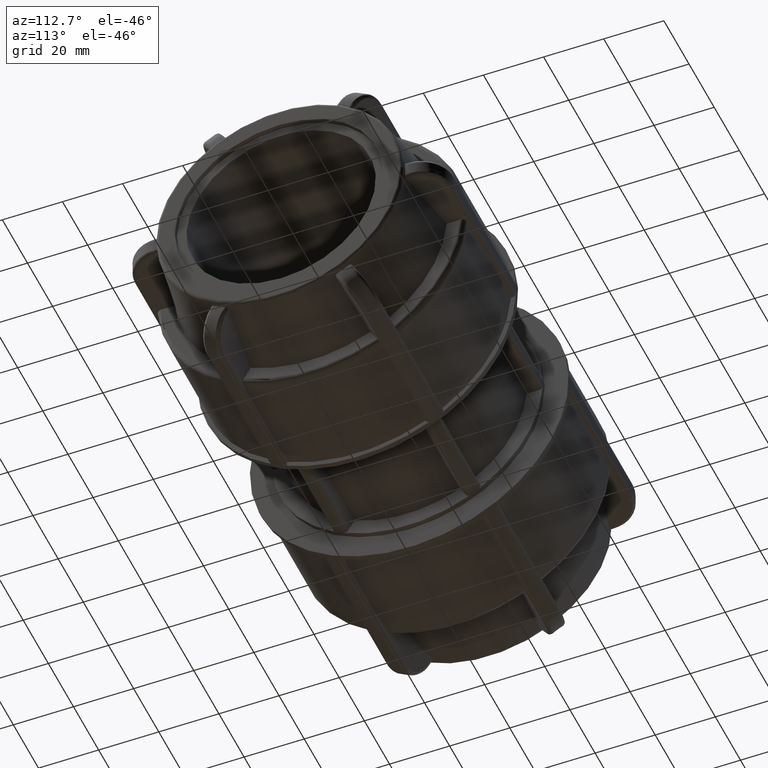
[diagram: clean part render]
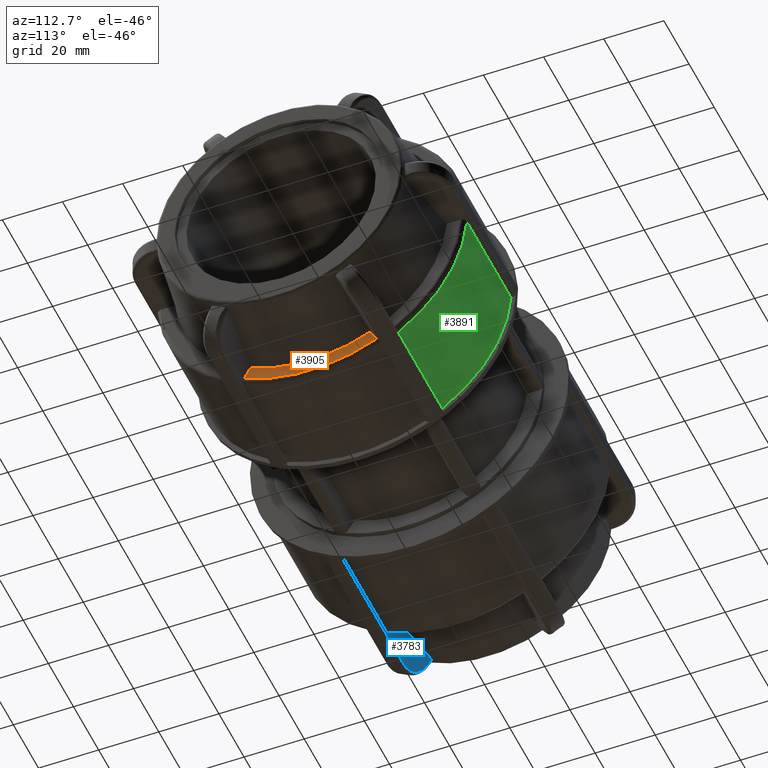
[diagram: same view with three faces highlighted in distinct colors, each labeled with its STEP entity id]
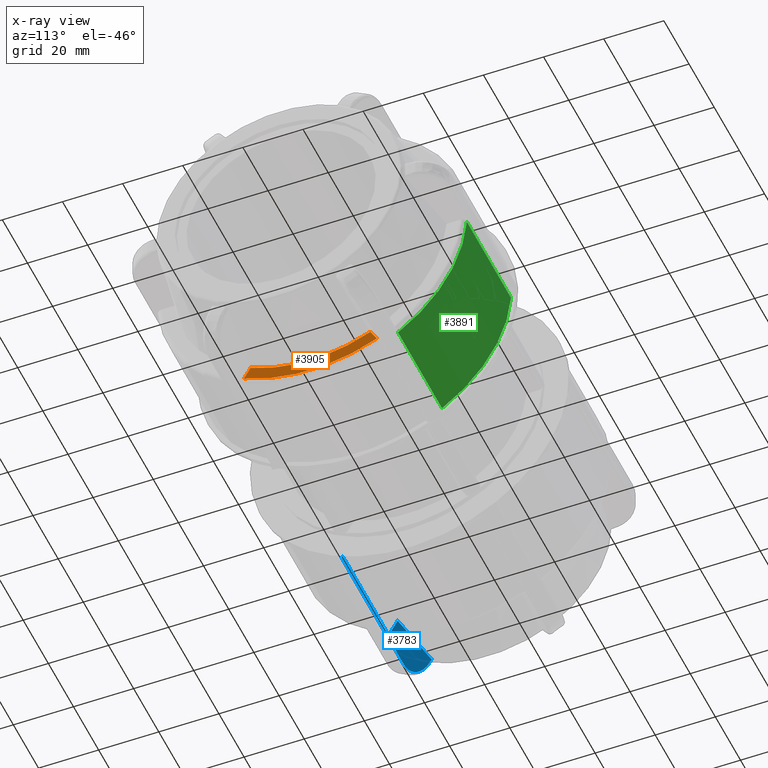
[diagram: x-ray of the same camera — body ghosted, the three highlighted faces saturated]
A machine part, auxiliary view with three faces highlighted in distinct colors.
The next image is the same camera in x-ray (body ghosted, the three faces saturated) — at least one of them is partly hidden behind the body in this view.
Their STEP definitions:

[orange] entity #3905 — the highlighted planar face has unit normal (1, 0, 0).
#299=PLANE('',#4342);
#519=FACE_OUTER_BOUND('',#772,.T.);
#772=EDGE_LOOP('',(#3537,#3538,#3539,#3540));
#964=LINE('',#7294,#1192);
#992=LINE('',#7793,#1220);
#1192=VECTOR('',#5166,4.38265552667059);
#1220=VECTOR('',#5286,4.38265552667059);
#1465=CIRCLE('',#4327,49.74);
#1472=CIRCLE('',#4335,45.3669908667471);
#1765=VERTEX_POINT('',#7282);
#1766=VERTEX_POINT('',#7293);
#1815=VERTEX_POINT('',#7788);
#1816=VERTEX_POINT('',#7792);
#2281=EDGE_CURVE('',#1766,#1765,#964,.T.);
#2359=EDGE_CURVE('',#1816,#1815,#992,.T.);
#2409=EDGE_CURVE('',#1816,#1765,#1465,.T.);
#2420=EDGE_CURVE('',#1766,#1815,#1472,.T.);
#3537=ORIENTED_EDGE('',*,*,#2359,.T.);
#3538=ORIENTED_EDGE('',*,*,#2420,.F.);
#3539=ORIENTED_EDGE('',*,*,#2281,.T.);
#3540=ORIENTED_EDGE('',*,*,#2409,.F.);
#3905=ADVANCED_FACE('',(#519),#299,.T.);
#4327=AXIS2_PLACEMENT_3D('',#7965,#5393,#5394);
#4335=AXIS2_PLACEMENT_3D('',#8011,#5409,#5410);
#4342=AXIS2_PLACEMENT_3D('',#8021,#5425,#5426);
#5166=DIRECTION('',(1.53080849893419E-16,-0.500000000000001,-0.866025403784438));
#5286=DIRECTION('',(1.53080849893419E-16,-0.499999999999999,0.866025403784439));
#5393=DIRECTION('center_axis',(-1.,-3.06161699786838E-16,0.));
#5394=DIRECTION('ref_axis',(3.06161699786838E-16,-1.,1.83697019872103E-16));
#5409=DIRECTION('center_axis',(1.,3.06161699786838E-16,0.));
#5410=DIRECTION('ref_axis',(0.,0.,-1.));
#5425=DIRECTION('center_axis',(1.,3.06161699786838E-16,0.));
#5426=DIRECTION('ref_axis',(0.,0.,-1.));
#7282=CARTESIAN_POINT('',(58.45,-22.092098040003,-44.564636251078));
#7293=CARTESIAN_POINT('',(58.45,-19.9007702766677,-40.769145228945));
#7294=CARTESIAN_POINT('',(58.45,-4.82772329412205,-14.6618620303032));
#7788=CARTESIAN_POINT('',(58.45,19.9007702766677,-40.769145228945));
#7792=CARTESIAN_POINT('',(58.45,22.092098040003,-44.564636251078));
#7793=CARTESIAN_POINT('',(58.45,5.70793791382874,-16.1864384732001));
#7965=CARTESIAN_POINT('Origin',(58.45,1.78951513525407E-14,0.));
#8011=CARTESIAN_POINT('Origin',(58.45,1.78951513525407E-14,0.));
#8021=CARTESIAN_POINT('Origin',(58.45,45.3669908667471,0.));

[blue] entity #3783 — the highlighted planar face has unit normal (0, -0.866, 0.5).
#50=(
BOUNDED_CURVE()
B_SPLINE_CURVE(2,(#6613,#6614,#6615),.UNSPECIFIED.,.F.,.F.)
B_SPLINE_CURVE_WITH_KNOTS((3,3),(0.,2.26158406282375),.UNSPECIFIED.)
CURVE()
GEOMETRIC_REPRESENTATION_ITEM()
RATIONAL_B_SPLINE_CURVE((1.,1.00108662926866,1.00010313541483))
REPRESENTATION_ITEM('')
);
#79=B_SPLINE_CURVE_WITH_KNOTS('',3,(#6059,#6060,#6061,#6062,#6063,#6064),
 .UNSPECIFIED.,.F.,.F.,(4,1,1,4),(0.,0.642536440213699,1.07089406702283,
1.49925169383196),.UNSPECIFIED.);
#104=B_SPLINE_CURVE_WITH_KNOTS('',3,(#6619,#6620,#6621,#6622,#6623,#6624,
#6625,#6626,#6627,#6628),.UNSPECIFIED.,.F.,.F.,(4,2,2,2,4),(0.,0.0617922903017199,
0.123644029369257,0.185570297774529,0.247562626783387),.UNSPECIFIED.);
#249=PLANE('',#4113);
#397=FACE_OUTER_BOUND('',#639,.T.);
#639=EDGE_LOOP('',(#2892,#2893,#2894,#2895,#2896,#2897,#2898,#2899));
#878=LINE('',#6018,#1106);
#879=LINE('',#6080,#1107);
#914=LINE('',#6617,#1142);
#915=LINE('',#6630,#1143);
#916=LINE('',#6631,#1144);
#1106=VECTOR('',#4724,49.52);
#1107=VECTOR('',#4731,1.03700516459937);
#1142=VECTOR('',#4870,4.38265552667059);
#1143=VECTOR('',#4871,35.07);
#1144=VECTOR('',#4872,0.584527829037809);
#1612=VERTEX_POINT('',#6015);
#1613=VERTEX_POINT('',#6017);
#1615=VERTEX_POINT('',#6057);
#1617=VERTEX_POINT('',#6067);
#1674=VERTEX_POINT('',#6612);
#1675=VERTEX_POINT('',#6616);
#1676=VERTEX_POINT('',#6618);
#1677=VERTEX_POINT('',#6629);
#2039=EDGE_CURVE('',#1612,#1613,#878,.T.);
#2043=EDGE_CURVE('',#1615,#1612,#79,.T.);
#2045=EDGE_CURVE('',#1617,#1615,#879,.T.);
#2134=EDGE_CURVE('',#1674,#1617,#50,.T.);
#2135=EDGE_CURVE('',#1675,#1674,#914,.T.);
#2136=EDGE_CURVE('',#1676,#1675,#104,.T.);
#2137=EDGE_CURVE('',#1677,#1676,#915,.T.);
#2138=EDGE_CURVE('',#1613,#1677,#916,.T.);
#2892=ORIENTED_EDGE('',*,*,#2045,.F.);
#2893=ORIENTED_EDGE('',*,*,#2134,.F.);
#2894=ORIENTED_EDGE('',*,*,#2135,.F.);
#2895=ORIENTED_EDGE('',*,*,#2136,.F.);
#2896=ORIENTED_EDGE('',*,*,#2137,.F.);
#2897=ORIENTED_EDGE('',*,*,#2138,.F.);
#2898=ORIENTED_EDGE('',*,*,#2039,.F.);
#2899=ORIENTED_EDGE('',*,*,#2043,.F.);
#3783=ADVANCED_FACE('',(#397),#249,.F.);
#4113=AXIS2_PLACEMENT_3D('',#6611,#4868,#4869);
#4724=DIRECTION('',(1.,1.84379105167321E-16,6.39206652186367E-17));
#4731=DIRECTION('',(-8.49499619419963E-17,-0.500000000000001,-0.866025403784438));
#4868=DIRECTION('center_axis',(1.27716656392624E-16,-0.866025403784438,
0.500000000000001));
#4869=DIRECTION('ref_axis',(0.,0.5,0.866025403784438));
#4870=DIRECTION('',(-1.53080849893419E-16,0.500000000000001,0.866025403784438));
#4871=DIRECTION('',(-1.,-3.06161699786838E-16,0.));
#4872=DIRECTION('',(-1.53080849893419E-16,0.5,0.866025403784438));
#6015=CARTESIAN_POINT('',(-71.23,-23.2209867205141,-46.5199288018125));
#6017=CARTESIAN_POINT('',(-21.71,-23.2209867205141,-46.5199288018125));
#6018=CARTESIAN_POINT('',(-20.875,-23.2209867205141,-46.5199288018125));
#6057=CARTESIAN_POINT('',(-80.77,-18.4462490077273,-38.2498404904507));
#6059=CARTESIAN_POINT('Ctrl Pts',(-80.77,-18.4462490077273,-38.2498404904507));
#6060=CARTESIAN_POINT('Ctrl Pts',(-80.77,-19.5171430747502,-40.1046834240583));
#6061=CARTESIAN_POINT('Ctrl Pts',(-79.5210653607357,-21.2957781808663,-43.1853697959771));
#6062=CARTESIAN_POINT('Ctrl Pts',(-75.5087201206689,-22.893986466725,-45.9535477481619));
#6063=CARTESIAN_POINT('Ctrl Pts',(-72.6578587560305,-23.2209867205141,-46.5199288018125));
#6064=CARTESIAN_POINT('Ctrl Pts',(-71.23,-23.2209867205141,-46.5199288018125));
#6067=CARTESIAN_POINT('',(-80.77,-17.9277464254277,-37.3517676740519));
#6080=CARTESIAN_POINT('',(-80.77,-18.5061191911687,-38.3535386900295));
#6611=CARTESIAN_POINT('Origin',(-20.04,-23.7251743268519,-47.3932073525362));
#6612=CARTESIAN_POINT('',(-58.45,-19.9007702766678,-40.769145228945));
#6613=CARTESIAN_POINT('Ctrl Pts',(-58.45,-19.9007702766678,-40.769145228945));
#6614=CARTESIAN_POINT('Ctrl Pts',(-70.1187027436178,-18.8695278787143,-38.9829810007705));
#6615=CARTESIAN_POINT('Ctrl Pts',(-80.7700000000003,-17.9277464254276,-37.3517676740519));
#6616=CARTESIAN_POINT('',(-58.45,-22.092098040003,-44.564636251078));
#6617=CARTESIAN_POINT('',(-58.45,-4.8277232941221,-14.6618620303032));
#6618=CARTESIAN_POINT('',(-56.78,-22.9287228059952,-46.0137128526468));
#6619=CARTESIAN_POINT('Ctrl Pts',(-56.78,-22.9287228059952,-46.0137128526468));
#6620=CARTESIAN_POINT('Ctrl Pts',(-56.9859743010057,-22.9287228059952,-46.0137128526468));
#6621=CARTESIAN_POINT('Ctrl Pts',(-57.2283814630195,-22.9045807159027,-45.9718975260057));
#6622=CARTESIAN_POINT('Ctrl Pts',(-57.6090944466039,-22.8256462816059,-45.835179075337));
#6623=CARTESIAN_POINT('Ctrl Pts',(-57.8147156802084,-22.7568529129179,-45.7160254655455));
#6624=CARTESIAN_POINT('Ctrl Pts',(-58.1062949093139,-22.6108950145188,-45.4632189697523));
#6625=CARTESIAN_POINT('Ctrl Pts',(-58.2437741301792,-22.5078692078878,-45.2847730381766));
#6626=CARTESIAN_POINT('Ctrl Pts',(-58.4016935444585,-22.3170278684741,-44.9542261421276));
#6627=CARTESIAN_POINT('Ctrl Pts',(-58.45,-22.1954185883511,-44.7435926902828));
#6628=CARTESIAN_POINT('Ctrl Pts',(-58.45,-22.092098040003,-44.564636251078));
#6629=CARTESIAN_POINT('',(-21.71,-22.9287228059952,-46.0137128526468));
#6630=CARTESIAN_POINT('',(-40.08,-22.9287228059952,-46.0137128526468));
#6631=CARTESIAN_POINT('',(-21.71,-4.07234715246546,-13.3535121741286));

[green] entity #3891 — the highlighted cylindrical surface (partial cylindrical patch) has radius 51.41 mm, axis along (1, 0, 0).
#505=FACE_OUTER_BOUND('',#757,.T.);
#757=EDGE_LOOP('',(#3448,#3449,#3450,#3451));
#954=LINE('',#7118,#1182);
#1010=LINE('',#7928,#1238);
#1182=VECTOR('',#5126,35.07);
#1238=VECTOR('',#5364,35.07);
#1452=CIRCLE('',#4301,51.41);
#1458=CIRCLE('',#4313,51.41);
#1747=VERTEX_POINT('',#7115);
#1748=VERTEX_POINT('',#7117);
#1839=VERTEX_POINT('',#7911);
#1841=VERTEX_POINT('',#7927);
#2254=EDGE_CURVE('',#1748,#1747,#954,.T.);
#2392=EDGE_CURVE('',#1747,#1839,#1452,.T.);
#2399=EDGE_CURVE('',#1839,#1841,#1010,.T.);
#2400=EDGE_CURVE('',#1748,#1841,#1458,.T.);
#3448=ORIENTED_EDGE('',*,*,#2254,.T.);
#3449=ORIENTED_EDGE('',*,*,#2392,.T.);
#3450=ORIENTED_EDGE('',*,*,#2399,.T.);
#3451=ORIENTED_EDGE('',*,*,#2400,.F.);
#3683=CYLINDRICAL_SURFACE('',#4312,51.41);
#3891=ADVANCED_FACE('',(#505),#3683,.T.);
#4301=AXIS2_PLACEMENT_3D('',#7913,#5339,#5340);
#4312=AXIS2_PLACEMENT_3D('',#7926,#5362,#5363);
#4313=AXIS2_PLACEMENT_3D('',#7929,#5365,#5366);
#5126=DIRECTION('',(-1.,-3.06161699786838E-16,0.));
#5339=DIRECTION('center_axis',(1.,3.06161699786838E-16,0.));
#5340=DIRECTION('ref_axis',(0.,0.,-1.));
#5362=DIRECTION('center_axis',(1.,3.06161699786838E-16,0.));
#5363=DIRECTION('ref_axis',(-4.64848907677115E-16,1.,0.));
#5364=DIRECTION('',(1.,3.06161699786838E-16,0.));
#5365=DIRECTION('center_axis',(1.,3.06161699786838E-16,0.));
#5366=DIRECTION('ref_axis',(3.07735423087113E-16,-1.,1.83697019872103E-16));
#7115=CARTESIAN_POINT('',(21.71,28.3846828498371,-42.8637128526469));
#7117=CARTESIAN_POINT('',(56.78,28.3846828498371,-42.8637128526469));
#7118=CARTESIAN_POINT('',(40.08,28.3846828498371,-42.8637128526469));
#7911=CARTESIAN_POINT('',(21.71,51.3134056558323,-3.15000000000001));
#7913=CARTESIAN_POINT('Origin',(21.71,6.64677050237226E-15,0.));
#7926=CARTESIAN_POINT('Origin',(40.08,1.22709609274565E-14,0.));
#7927=CARTESIAN_POINT('',(56.78,51.3134056558323,-3.15000000000001));
#7928=CARTESIAN_POINT('',(40.08,51.3134056558323,-3.15000000000001));
#7929=CARTESIAN_POINT('Origin',(56.78,1.73838613138967E-14,0.));